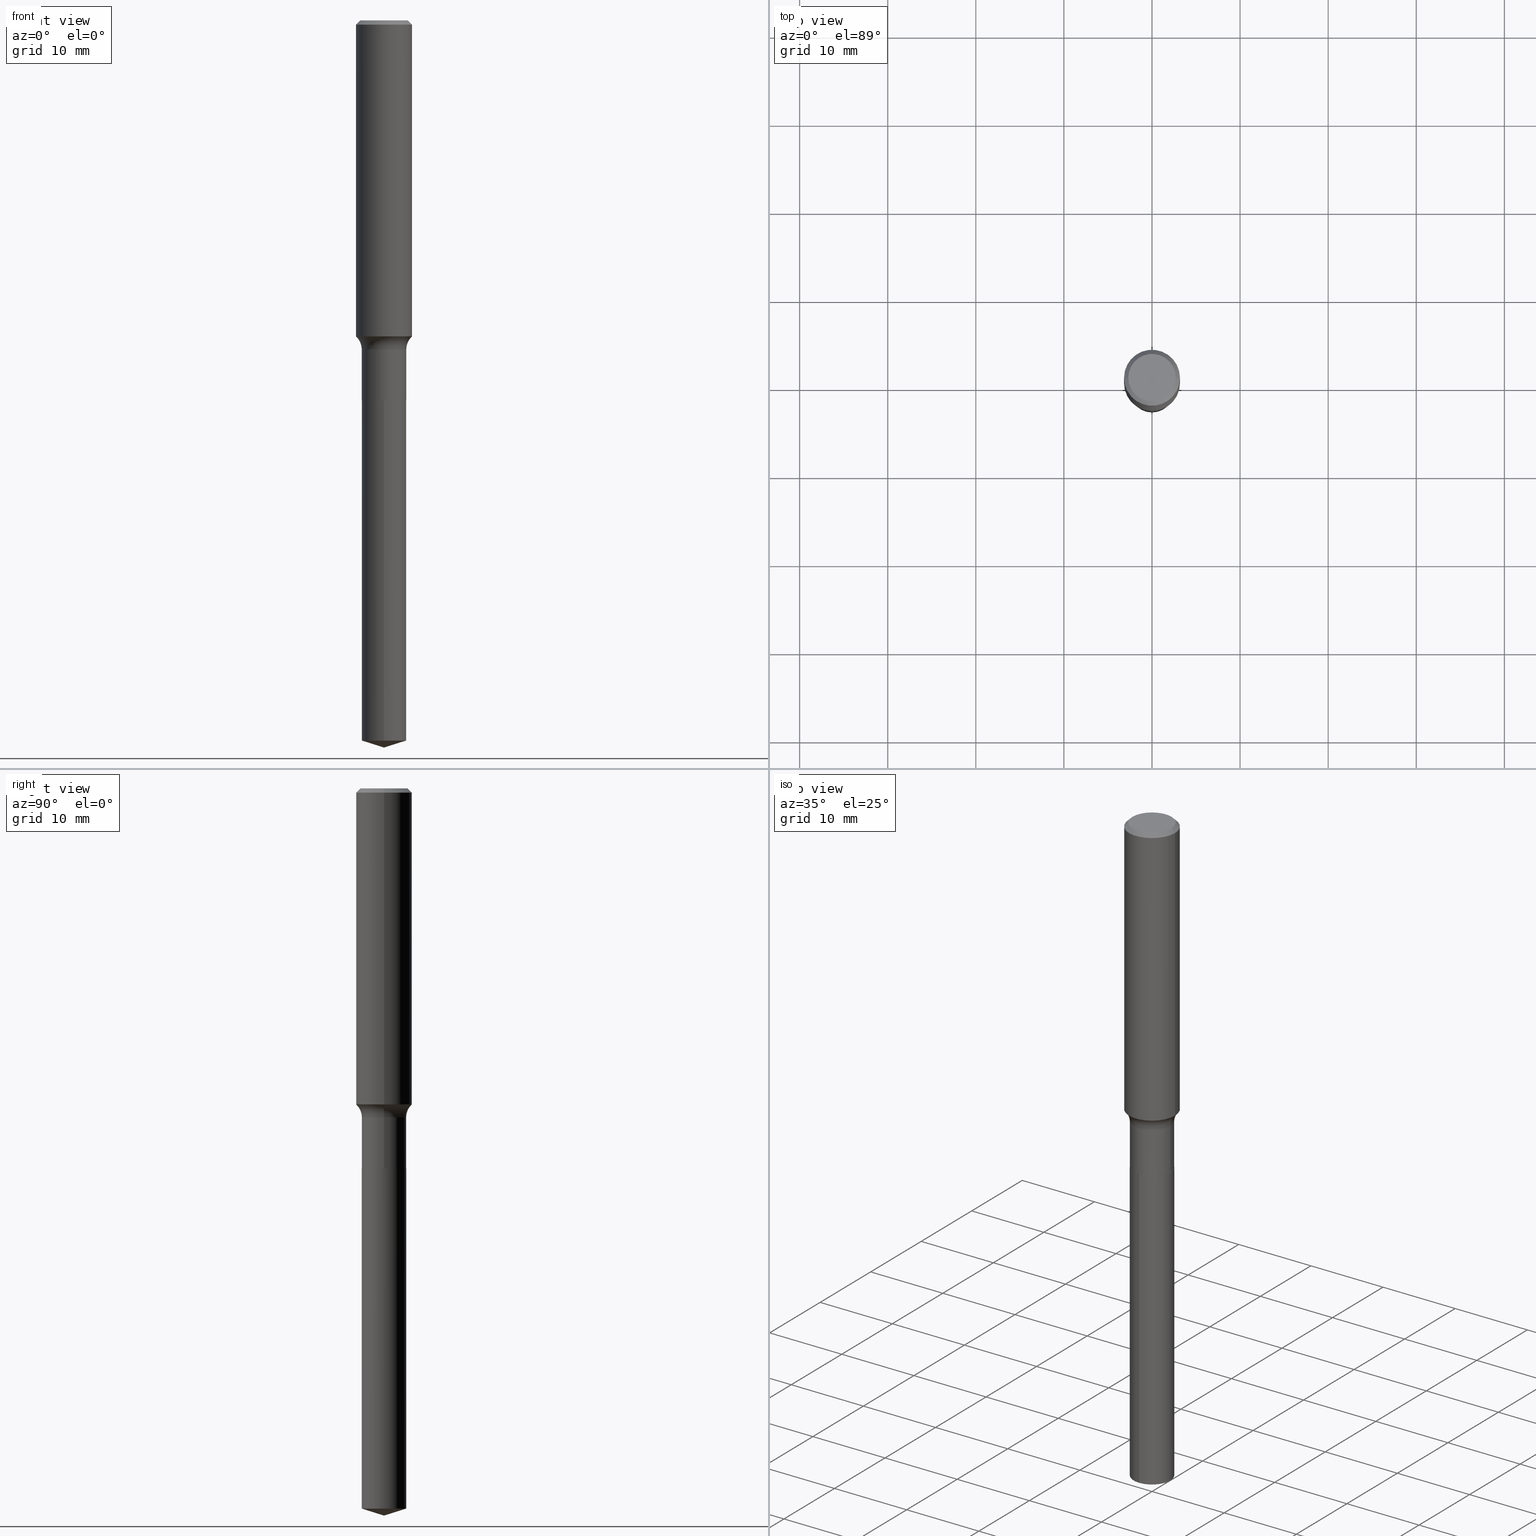
[diagram: canonical four-view strip — front | top / right | iso, engineering-drawing reading convention]
A machine part, canonical four-view strip (front | top / right | iso — engineering-drawing reading convention). The complete STEP part file that produces these views, byte-faithful:
ISO-10303-21;
HEADER;
FILE_DESCRIPTION (( 'STEP AP203' ),
    '1' );
FILE_NAME ('52333.STEP',
    '2024-04-19T13:43:29',
    ( '' ),
    ( '' ),
    'SwSTEP 2.0',
    'SolidWorks 2023',
    '' );
FILE_SCHEMA (( 'CONFIG_CONTROL_DESIGN' ));
ENDSEC;

DATA;
#1 = ORIENTED_EDGE ( 'NONE', *, *, #413, .T. ) ;
#2 = PERSON_AND_ORGANIZATION ( #422, #371 ) ;
#3 = CC_DESIGN_APPROVAL ( #241, ( #162 ) ) ;
#4 = EDGE_CURVE ( 'NONE', #147, #464, #203, .T. ) ;
#5 = CIRCLE ( 'NONE', #224, 0.09950000000000000511 ) ;
#6 = DIRECTION ( 'NONE',  ( -2.445468806185136597E-29, 3.491481338843145583E-15, 1.000000000000000000 ) ) ;
#7 = FACE_OUTER_BOUND ( 'NONE', #248, .T. ) ;
#8 = EDGE_CURVE ( 'NONE', #351, #342, #314, .T. ) ;
#9 = PRODUCT ( '52333', '52333', '', ( #295 ) ) ;
#10 = DIRECTION ( 'NONE',  ( -6.982962677686266711E-15, -1.000000000000000000, 3.491481338843145583E-15 ) ) ;
#11 = CARTESIAN_POINT ( 'NONE',  ( 0.1250000000000000000, -9.230275248247509846E-16, -0.01875000000000012768 ) ) ;
#12 = ORIENTED_EDGE ( 'NONE', *, *, #444, .F. ) ;
#13 = DIRECTION ( 'NONE',  ( -2.445480960601985091E-29, 3.491463933026432344E-15, 1.000000000000000000 ) ) ;
#14 = DIRECTION ( 'NONE',  ( -2.445480960601985091E-29, 3.491463933026432344E-15, 1.000000000000000000 ) ) ;
#15 = ORIENTED_EDGE ( 'NONE', *, *, #183, .F. ) ;
#16 = FACE_OUTER_BOUND ( 'NONE', #359, .T. ) ;
#17 =( LENGTH_UNIT ( ) NAMED_UNIT ( * ) SI_UNIT ( $, .METRE. ) );
#18 = DIRECTION ( 'NONE',  ( 1.000000000000000000, -6.982962677686268288E-15, 0.000000000000000000 ) ) ;
#19 = DIMENSIONAL_EXPONENTS ( 1.000000000000000000, 0.000000000000000000, 0.000000000000000000, 0.000000000000000000, 0.000000000000000000, 0.000000000000000000, 0.000000000000000000 ) ;
#20 = ORIENTED_EDGE ( 'NONE', *, *, #45, .T. ) ;
#21 = LINE ( 'NONE', #484, #388 ) ;
#22 = CARTESIAN_POINT ( 'NONE',  ( 0.000000000000000000, 0.000000000000000000, 0.000000000000000000 ) ) ;
#23 = VECTOR ( 'NONE', #50, 39.37007874015748143 ) ;
#24 = DIRECTION ( 'NONE',  ( -2.445468806185136597E-29, 3.491481338843145583E-15, 1.000000000000000000 ) ) ;
#25 = PRODUCT_RELATED_PRODUCT_CATEGORY ( 'detail', '', ( #9 ) ) ;
#26 = DIRECTION ( 'NONE',  ( -6.982962677686266711E-15, -1.000000000000000000, 5.491151746058819933E-15 ) ) ;
#27 = DIRECTION ( 'NONE',  ( -6.982962677686265922E-15, -1.000000000000000000, 3.500519750498801462E-15 ) ) ;
#28 = EDGE_LOOP ( 'NONE', ( #207, #483, #326 ) ) ;
#29 = DIRECTION ( 'NONE',  ( -2.438088387897960049E-29, 3.491481338843145188E-15, 1.000000000000000000 ) ) ;
#30 = DIRECTION ( 'NONE',  ( 1.000000000000000000, -6.982962677686264344E-15, 0.000000000000000000 ) ) ;
#31 = DIRECTION ( 'NONE',  ( -1.000000000000000000, 7.105427357601001859E-15, 0.000000000000000000 ) ) ;
#32 = COORDINATED_UNIVERSAL_TIME_OFFSET ( 5, 0, .BEHIND. ) ;
#33 = CARTESIAN_POINT ( 'NONE',  ( 3.595083691972769604E-29, -5.132826716233308319E-15, -1.470099999999999962 ) ) ;
#34 = EDGE_CURVE ( 'NONE', #382, #66, #475, .T. ) ;
#35 = ORIENTED_EDGE ( 'NONE', *, *, #78, .T. ) ;
#36 = CIRCLE ( 'NONE', #462, 0.1250000000000001665 ) ;
#37 = ORIENTED_EDGE ( 'NONE', *, *, #385, .F. ) ;
#38 = DIRECTION ( 'NONE',  ( -2.445480960601985091E-29, 3.491463933026432344E-15, 1.000000000000000000 ) ) ;
#39 = ORIENTED_EDGE ( 'NONE', *, *, #256, .F. ) ;
#40 = EDGE_CURVE ( 'NONE', #477, #464, #202, .T. ) ;
#41 = CYLINDRICAL_SURFACE ( 'NONE', #65, 0.09950000000000000511 ) ;
#42 = AXIS2_PLACEMENT_3D ( 'NONE', #163, #332, #55 ) ;
#43 = SECURITY_CLASSIFICATION ( '', '', #184 ) ;
#44 = CARTESIAN_POINT ( 'NONE',  ( 0.09900000000000000466, -6.623340099785444075E-15, -1.699000000000000066 ) ) ;
#45 = EDGE_CURVE ( 'NONE', #98, #464, #49, .T. ) ;
#46 = ORIENTED_EDGE ( 'NONE', *, *, #305, .F. ) ;
#47 = CONICAL_SURFACE ( 'NONE', #154, 0.09900000000000000466, 0.7853981633975507526 ) ;
#48 = LOCAL_TIME ( 9, 43, 29.00000000000000000, #460 ) ;
#49 = LINE ( 'NONE', #77, #308 ) ;
#50 = DIRECTION ( 'NONE',  ( -0.7071067811866199593, 7.493145998870616062E-15, 0.7071067811864750752 ) ) ;
#51 = ORIENTED_EDGE ( 'NONE', *, *, #56, .F. ) ;
#52 = DIRECTION ( 'NONE',  ( -2.445468806185136597E-29, 3.491481338843145583E-15, 1.000000000000000000 ) ) ;
#53 = AXIS2_PLACEMENT_3D ( 'NONE', #285, #24, #249 ) ;
#54 = VERTEX_POINT ( 'NONE', #44 ) ;
#55 = DIRECTION ( 'NONE',  ( 1.000000000000000000, -6.982962677686268288E-15, 0.000000000000000000 ) ) ;
#56 = EDGE_CURVE ( 'NONE', #351, #281, #353, .T. ) ;
#57 = ORIENTED_EDGE ( 'NONE', *, *, #333, .F. ) ;
#58 = CARTESIAN_POINT ( 'NONE',  ( -0.1250000000000001388, -4.043236422096399884E-15, -1.412413346430911654 ) ) ;
#59 = CALENDAR_DATE ( 2024, 19, 4 ) ;
#60 = FACE_OUTER_BOUND ( 'NONE', #330, .T. ) ;
#61 = EDGE_CURVE ( 'NONE', #87, #142, #329, .T. ) ;
#62 = VERTEX_POINT ( 'NONE', #58 ) ;
#63 = CYLINDRICAL_SURFACE ( 'NONE', #457, 0.09949999999999999123 ) ;
#64 = DIRECTION ( 'NONE',  ( 6.982962677686265922E-15, 1.000000000000000000, -3.491463933026432738E-15 ) ) ;
#65 = AXIS2_PLACEMENT_3D ( 'NONE', #454, #343, #349 ) ;
#66 = VERTEX_POINT ( 'NONE', #467 ) ;
#67 = CARTESIAN_POINT ( 'NONE',  ( 0.09900000000000000466, -6.623340099785444075E-15, -1.699000000000000066 ) ) ;
#68 = DIRECTION ( 'NONE',  ( 1.000000000000000000, -6.982962677686266711E-15, 4.875930095424100059E-29 ) ) ;
#69 = COORDINATED_UNIVERSAL_TIME_OFFSET ( 5, 0, .BEHIND. ) ;
#70 = ORIENTED_EDGE ( 'NONE', *, *, #34, .T. ) ;
#71 = AXIS2_PLACEMENT_3D ( 'NONE', #336, #138, #372 ) ;
#72 = PERSON_AND_ORGANIZATION ( #422, #371 ) ;
#73 = APPROVAL_STATUS ( 'not_yet_approved' ) ;
#74 = ADVANCED_FACE ( 'NONE', ( #217 ), #173, .T. ) ;
#75 = APPROVAL_ROLE ( '' ) ;
#76 = CARTESIAN_POINT ( 'NONE',  ( 7.069900220813783115E-16, 0.09949999999998877798, -3.218627770506540919 ) ) ;
#77 = CARTESIAN_POINT ( 'NONE',  ( 0.09949999999999999123, -6.948047864297834667E-16, 4.851795891916955189E-30 ) ) ;
#78 = EDGE_CURVE ( 'NONE', #477, #66, #21, .T. ) ;
#79 = LINE ( 'NONE', #67, #291 ) ;
#80 = VECTOR ( 'NONE', #244, 39.37007874015748143 ) ;
#81 = EDGE_CURVE ( 'NONE', #464, #147, #304, .T. ) ;
#82 = CARTESIAN_POINT ( 'NONE',  ( -0.09900000000000000466, -5.228589486292005187E-15, -1.699000000000000066 ) ) ;
#83 = ORIENTED_EDGE ( 'NONE', *, *, #94, .F. ) ;
#84 = ADVANCED_FACE ( 'NONE', ( #440 ), #425, .F. ) ;
#85 =( NAMED_UNIT ( * ) SI_UNIT ( $, .STERADIAN. ) SOLID_ANGLE_UNIT ( ) );
#86 = DIRECTION ( 'NONE',  ( -2.445468806185136597E-29, 3.491481338843145583E-15, 1.000000000000000000 ) ) ;
#87 = VERTEX_POINT ( 'NONE', #395 ) ;
#88 = CARTESIAN_POINT ( 'NONE',  ( 7.947813121956450705E-29, -1.134725778233590561E-14, -3.250000000000000000 ) ) ;
#89 = EDGE_CURVE ( 'NONE', #238, #171, #400, .T. ) ;
#90 = CONICAL_SURFACE ( 'NONE', #393, 0.09900000000000000466, 0.7853981633975507526 ) ;
#91 = ORIENTED_EDGE ( 'NONE', *, *, #40, .F. ) ;
#92 = DIRECTION ( 'NONE',  ( 2.438088387897960049E-29, -3.491481338843145188E-15, -1.000000000000000000 ) ) ;
#93 = PERSON_AND_ORGANIZATION ( #422, #371 ) ;
#94 = EDGE_CURVE ( 'NONE', #190, #351, #465, .T. ) ;
#95 = EDGE_LOOP ( 'NONE', ( #347, #216 ) ) ;
#96 = FACE_OUTER_BOUND ( 'NONE', #193, .T. ) ;
#97 = DIRECTION ( 'NONE',  ( -2.445468806185136597E-29, 3.491481338843145583E-15, 1.000000000000000000 ) ) ;
#98 = VERTEX_POINT ( 'NONE', #369 ) ;
#99 = COORDINATED_UNIVERSAL_TIME_OFFSET ( 5, 0, .BEHIND. ) ;
#100 = LINE ( 'NONE', #262, #368 ) ;
#101 = AXIS2_PLACEMENT_3D ( 'NONE', #318, #118, #421 ) ;
#102 = VECTOR ( 'NONE', #228, 39.37007874015748143 ) ;
#103 = CARTESIAN_POINT ( 'NONE',  ( 4.154851501708547396E-29, -5.932026794694504207E-15, -1.699000000000000066 ) ) ;
#104 = ORIENTED_EDGE ( 'NONE', *, *, #231, .T. ) ;
#105 = DIRECTION ( 'NONE',  ( 7.105427357601001859E-15, 1.000000000000000000, -3.491481338843145583E-15 ) ) ;
#106 = COORDINATED_UNIVERSAL_TIME_OFFSET ( 5, 0, .BEHIND. ) ;
#107 = CARTESIAN_POINT ( 'NONE',  ( 3.454012780136355441E-29, -4.931414841796526694E-15, -1.412413346430911654 ) ) ;
#108 = DIRECTION ( 'NONE',  ( 1.000000000000000000, -6.982962677686265922E-15, 4.876176775795935793E-29 ) ) ;
#109 = DATE_AND_TIME ( #302, #225 ) ;
#110 = AXIS2_PLACEMENT_3D ( 'NONE', #273, #381, #201 ) ;
#111 = CIRCLE ( 'NONE', #121, 0.1250000000000000000 ) ;
#112 = APPROVAL_PERSON_ORGANIZATION ( #327, #241, #289 ) ;
#113 = CC_DESIGN_DATE_AND_TIME_ASSIGNMENT ( #188, #151, ( #43 ) ) ;
#114 = ORIENTED_EDGE ( 'NONE', *, *, #123, .T. ) ;
#115 = FACE_OUTER_BOUND ( 'NONE', #451, .T. ) ;
#116 = APPROVAL_DATE_TIME ( #383, #311 ) ;
#117 = PRODUCT_DEFINITION_SHAPE ( 'NONE', 'NONE',  #162 ) ;
#118 = DIRECTION ( 'NONE',  ( -2.445480960601985091E-29, 3.491463933026432344E-15, 1.000000000000000000 ) ) ;
#119 = CARTESIAN_POINT ( 'NONE',  ( -8.833098550485388739E-28, 1.261119226068520643E-13, 36.12007874015748143 ) ) ;
#120 = ADVANCED_FACE ( 'NONE', ( #135 ), #391, .T. ) ;
#121 = AXIS2_PLACEMENT_3D ( 'NONE', #300, #168, #303 ) ;
#122 = ORIENTED_EDGE ( 'NONE', *, *, #8, .F. ) ;
#123 = EDGE_CURVE ( 'NONE', #171, #98, #377, .T. ) ;
#124 = CARTESIAN_POINT ( 'NONE',  ( 7.069900220813411364E-16, 0.09949999999999407929, -1.699000000000000288 ) ) ;
#125 = CONICAL_SURFACE ( 'NONE', #358, 124.8659371009116086, 1.265363707695883688 ) ;
#126 = APPLICATION_CONTEXT ( 'configuration controlled 3d designs of mechanical parts and assemblies' ) ;
#127 = EDGE_CURVE ( 'NONE', #238, #54, #165, .T. ) ;
#128 = ORIENTED_EDGE ( 'NONE', *, *, #221, .T. ) ;
#129 = CARTESIAN_POINT ( 'NONE',  ( 4.585254011597162998E-31, -6.546527510330942834E-17, -0.01875000000000012768 ) ) ;
#130 = DIRECTION ( 'NONE',  ( 0.7071067811866199593, -2.468850131083015945E-15, 0.7071067811864750752 ) ) ;
#131 = ORIENTED_EDGE ( 'NONE', *, *, #256, .T. ) ;
#132 = CARTESIAN_POINT ( 'NONE',  ( 4.154851501708547396E-29, -5.932026794694504207E-15, -1.699000000000000066 ) ) ;
#133 = DIRECTION ( 'NONE',  ( -2.445468806185136597E-29, 3.491481338843145583E-15, 1.000000000000000000 ) ) ;
#134 = ORIENTED_EDGE ( 'NONE', *, *, #78, .F. ) ;
#135 = FACE_OUTER_BOUND ( 'NONE', #180, .T. ) ;
#136 = EDGE_CURVE ( 'NONE', #87, #66, #140, .T. ) ;
#137 = APPROVAL_STATUS ( 'not_yet_approved' ) ;
#138 = DIRECTION ( 'NONE',  ( -2.445468806185136597E-29, 3.491481338843145583E-15, 1.000000000000000000 ) ) ;
#139 = ORIENTED_EDGE ( 'NONE', *, *, #444, .T. ) ;
#140 = LINE ( 'NONE', #11, #145 ) ;
#141 = CARTESIAN_POINT ( 'NONE',  ( 0.000000000000000000, 0.000000000000000000, 0.000000000000000000 ) ) ;
#142 = VERTEX_POINT ( 'NONE', #282 ) ;
#143 = DIRECTION ( 'NONE',  ( -1.000000000000000000, 6.982962677686265922E-15, -4.876176775795935793E-29 ) ) ;
#144 = DIRECTION ( 'NONE',  ( -6.659769872151614734E-15, -0.9537169507482242681, 0.3007057995042813903 ) ) ;
#145 = VECTOR ( 'NONE', #335, 39.37007874015748143 ) ;
#146 = AXIS2_PLACEMENT_3D ( 'NONE', #325, #283, #64 ) ;
#147 = VERTEX_POINT ( 'NONE', #430 ) ;
#148 = ADVANCED_BREP_SHAPE_REPRESENTATION ( '52333', ( #429, #438, #420 ), #166 ) ;
#149 = CARTESIAN_POINT ( 'NONE',  ( -0.1250000000000000000, -1.610261638749791898E-15, -0.01875000000000012768 ) ) ;
#150 = ORIENTED_EDGE ( 'NONE', *, *, #491, .T. ) ;
#151 = DATE_TIME_ROLE ( 'classification_date' ) ;
#152 = ORIENTED_EDGE ( 'NONE', *, *, #81, .F. ) ;
#153 = CC_DESIGN_DATE_AND_TIME_ASSIGNMENT ( #192, #236, ( #162 ) ) ;
#154 = AXIS2_PLACEMENT_3D ( 'NONE', #402, #219, #30 ) ;
#155 = DIRECTION ( 'NONE',  ( -2.445480960601985091E-29, 3.491463933026432344E-15, 1.000000000000000000 ) ) ;
#156 = PERSON_AND_ORGANIZATION ( #422, #371 ) ;
#157 = CARTESIAN_POINT ( 'NONE',  ( 3.454012780136355441E-29, -4.931414841796526694E-15, -1.412413346430911654 ) ) ;
#158 = DIRECTION ( 'NONE',  ( 1.000000000000000000, -6.982962677686269077E-15, 0.000000000000000000 ) ) ;
#159 = VECTOR ( 'NONE', #172, 39.37007874015748143 ) ;
#160 = CARTESIAN_POINT ( 'NONE',  ( -8.833098550485388739E-28, 1.261119226068520643E-13, 36.12007874015748143 ) ) ;
#161 = ORIENTED_EDGE ( 'NONE', *, *, #123, .F. ) ;
#162 = PRODUCT_DEFINITION ( 'UNKNOWN', '', #271, #200 ) ;
#163 = CARTESIAN_POINT ( 'NONE',  ( 4.153628767305455155E-29, -5.930281054025084281E-15, -1.698500000000000121 ) ) ;
#164 = LENGTH_MEASURE_WITH_UNIT ( LENGTH_MEASURE( 0.02539999999999999897 ), #17 );
#165 = CIRCLE ( 'NONE', #53, 0.09900000000000000466 ) ;
#166 =( GEOMETRIC_REPRESENTATION_CONTEXT ( 3 ) GLOBAL_UNCERTAINTY_ASSIGNED_CONTEXT ( ( #417 ) ) GLOBAL_UNIT_ASSIGNED_CONTEXT ( ( #405, #428, #85 ) ) REPRESENTATION_CONTEXT ( 'NONE', 'WORKASPACE' ) );
#167 = EDGE_LOOP ( 'NONE', ( #334, #426, #139, #70 ) ) ;
#168 = DIRECTION ( 'NONE',  ( -2.445468806185136597E-29, 3.491481338843145583E-15, 1.000000000000000000 ) ) ;
#169 = PERSON_AND_ORGANIZATION_ROLE ( 'design_owner' ) ;
#170 = CARTESIAN_POINT ( 'NONE',  ( -1.591006383764330940E-46, 2.271535455632768948E-32, 6.505936120470318766E-18 ) ) ;
#171 = VERTEX_POINT ( 'NONE', #294 ) ;
#172 = DIRECTION ( 'NONE',  ( 6.776566513254239994E-15, 0.9537169507482263775, 0.3007057995042747844 ) ) ;
#173 = CONICAL_SURFACE ( 'NONE', #408, 0.1250000000000000000, 0.7853981633974447263 ) ;
#174 = DIRECTION ( 'NONE',  ( -2.445468806185136597E-29, 3.491481338843145583E-15, 1.000000000000000000 ) ) ;
#175 = LOCAL_TIME ( 9, 43, 29.00000000000000000, #99 ) ;
#176 = ORIENTED_EDGE ( 'NONE', *, *, #385, .T. ) ;
#177 = DIRECTION ( 'NONE',  ( 2.445468806185136597E-29, -3.491481338843145583E-15, -1.000000000000000000 ) ) ;
#178 = ADVANCED_FACE ( 'NONE', ( #427 ), #63, .T. ) ;
#179 = CARTESIAN_POINT ( 'NONE',  ( -0.09900000000000000466, -5.225940259117894775E-15, -1.699000000000000066 ) ) ;
#180 = EDGE_LOOP ( 'NONE', ( #51, #434, #104, #298 ) ) ;
#181 = PERSON_AND_ORGANIZATION_ROLE ( 'creator' ) ;
#182 = FACE_OUTER_BOUND ( 'NONE', #187, .T. ) ;
#183 = EDGE_CURVE ( 'NONE', #443, #281, #315, .T. ) ;
#184 = SECURITY_CLASSIFICATION_LEVEL ( 'unclassified' ) ;
#185 = CIRCLE ( 'NONE', #411, 0.09950000000000000511 ) ;
#186 = VECTOR ( 'NONE', #354, 39.37007874015748143 ) ;
#187 = EDGE_LOOP ( 'NONE', ( #46, #176, #35, #237 ) ) ;
#188 = DATE_AND_TIME ( #376, #322 ) ;
#189 = DIRECTION ( 'NONE',  ( 1.000000000000000000, -6.982962677686266711E-15, 4.876176775795935793E-29 ) ) ;
#190 = VERTEX_POINT ( 'NONE', #88 ) ;
#191 = ADVANCED_FACE ( 'NONE', ( #16 ), #288, .F. ) ;
#192 = DATE_AND_TIME ( #487, #196 ) ;
#193 = EDGE_LOOP ( 'NONE', ( #37, #260, #373, #91 ) ) ;
#194 = CIRCLE ( 'NONE', #269, 0.1062499999999999972 ) ;
#195 = DIRECTION ( 'NONE',  ( 1.000000000000000000, -6.982962677686261977E-15, 0.000000000000000000 ) ) ;
#196 = LOCAL_TIME ( 9, 43, 29.00000000000000000, #69 ) ;
#197 = CARTESIAN_POINT ( 'NONE',  ( -6.948047864297420515E-16, -0.09950000000000593092, -1.698999999999999844 ) ) ;
#198 = FACE_OUTER_BOUND ( 'NONE', #28, .T. ) ;
#199 = LINE ( 'NONE', #276, #186 ) ;
#200 = DESIGN_CONTEXT ( 'detailed design', #470, 'design' ) ;
#201 = DIRECTION ( 'NONE',  ( 1.000000000000000000, -6.982962677686266711E-15, 4.875930095424100059E-29 ) ) ;
#202 = CIRCLE ( 'NONE', #474, 0.07799999999999995826 ) ;
#203 = CIRCLE ( 'NONE', #488, 0.09949999999999997735 ) ;
#204 = CC_DESIGN_APPROVAL ( #379, ( #271 ) ) ;
#205 = SHAPE_DEFINITION_REPRESENTATION ( #117, #148 ) ;
#206 = CC_DESIGN_PERSON_AND_ORGANIZATION_ASSIGNMENT ( #93, #254, ( #162 ) ) ;
#207 = ORIENTED_EDGE ( 'NONE', *, *, #259, .F. ) ;
#208 = DIRECTION ( 'NONE',  ( -2.445468806185136597E-29, 3.491481338843145583E-15, 1.000000000000000000 ) ) ;
#209 = DIRECTION ( 'NONE',  ( 1.000000000000000000, -6.982962677686269077E-15, 4.883557194083114022E-29 ) ) ;
#210 = AXIS2_PLACEMENT_3D ( 'NONE', #22, #174, #328 ) ;
#211 = APPROVAL_PERSON_ORGANIZATION ( #72, #311, #456 ) ;
#212 = EDGE_CURVE ( 'NONE', #62, #147, #389, .T. ) ;
#213 = EDGE_LOOP ( 'NONE', ( #365, #375, #131, #12 ) ) ;
#214 = DIRECTION ( 'NONE',  ( 1.000000000000000000, -6.982962677686261977E-15, 0.000000000000000000 ) ) ;
#215 = CARTESIAN_POINT ( 'NONE',  ( 0.1250000000000001388, -5.804285176507311611E-15, -1.412413346430911654 ) ) ;
#216 = ORIENTED_EDGE ( 'NONE', *, *, #61, .T. ) ;
#217 = FACE_OUTER_BOUND ( 'NONE', #213, .T. ) ;
#218 = DIRECTION ( 'NONE',  ( 0.000000000000000000, 0.000000000000000000, 1.000000000000000000 ) ) ;
#219 = DIRECTION ( 'NONE',  ( -2.445468806185136597E-29, 3.491481338843145583E-15, 1.000000000000000000 ) ) ;
#220 = EDGE_LOOP ( 'NONE', ( #150, #234, #15, #439 ) ) ;
#221 = EDGE_CURVE ( 'NONE', #171, #147, #232, .T. ) ;
#222 = DIRECTION ( 'NONE',  ( -2.445468806185136877E-29, 3.491481338843145188E-15, 1.000000000000000000 ) ) ;
#223 = PLANE ( 'NONE',  #146 ) ;
#224 = AXIS2_PLACEMENT_3D ( 'NONE', #103, #38, #415 ) ;
#225 = LOCAL_TIME ( 9, 43, 29.00000000000000000, #32 ) ;
#226 = ORIENTED_EDGE ( 'NONE', *, *, #449, .T. ) ;
#227 = ADVANCED_FACE ( 'NONE', ( #7 ), #331, .T. ) ;
#228 = DIRECTION ( 'NONE',  ( -2.445468806185136877E-29, 3.491481338843145188E-15, 1.000000000000000000 ) ) ;
#229 = ORIENTED_EDGE ( 'NONE', *, *, #127, .T. ) ;
#230 = DIRECTION ( 'NONE',  ( 1.000000000000000000, -6.982962677686269077E-15, 0.000000000000000000 ) ) ;
#231 = EDGE_CURVE ( 'NONE', #342, #443, #319, .T. ) ;
#232 = LINE ( 'NONE', #378, #80 ) ;
#233 = ADVANCED_FACE ( 'NONE', ( #198 ), #125, .T. ) ;
#234 = ORIENTED_EDGE ( 'NONE', *, *, #56, .T. ) ;
#235 = APPROVAL_STATUS ( 'not_yet_approved' ) ;
#236 = DATE_TIME_ROLE ( 'creation_date' ) ;
#237 = ORIENTED_EDGE ( 'NONE', *, *, #34, .F. ) ;
#238 = VERTEX_POINT ( 'NONE', #179 ) ;
#239 = CARTESIAN_POINT ( 'NONE',  ( -6.948047864297420515E-16, -0.09950000000000593092, -1.698999999999999844 ) ) ;
#240 = DIRECTION ( 'NONE',  ( -2.445468806185136877E-29, 3.491481338843145188E-15, 1.000000000000000000 ) ) ;
#241 = APPROVAL ( #137, 'UNSPECIFIED' ) ;
#242 = CARTESIAN_POINT ( 'NONE',  ( 4.585254011597162998E-31, -6.546527510330942834E-17, -0.01875000000000012768 ) ) ;
#243 = AXIS2_PLACEMENT_3D ( 'NONE', #471, #208, #214 ) ;
#244 = DIRECTION ( 'NONE',  ( -2.445468806185136877E-29, 3.491481338843145188E-15, 1.000000000000000000 ) ) ;
#245 = CC_DESIGN_SECURITY_CLASSIFICATION ( #43, ( #271 ) ) ;
#246 = DIRECTION ( 'NONE',  ( -2.445480960601985371E-29, 3.491463933026432738E-15, 1.000000000000000000 ) ) ;
#247 = CARTESIAN_POINT ( 'NONE',  ( 7.947813484114912367E-29, -1.134725778233590719E-14, -3.250000000000000000 ) ) ;
#248 = EDGE_LOOP ( 'NONE', ( #83, #287, #122 ) ) ;
#249 = DIRECTION ( 'NONE',  ( 1.000000000000000000, -6.982962677686264344E-15, 0.000000000000000000 ) ) ;
#250 = CIRCLE ( 'NONE', #290, 0.1250000000000001665 ) ;
#251 = CC_DESIGN_APPROVAL ( #311, ( #43 ) ) ;
#252 = DIRECTION ( 'NONE',  ( 1.000000000000000000, -6.982962677686264344E-15, 0.000000000000000000 ) ) ;
#253 = CARTESIAN_POINT ( 'NONE',  ( 4.154851501708547396E-29, -5.932026794694504207E-15, -1.699000000000000066 ) ) ;
#254 = PERSON_AND_ORGANIZATION_ROLE ( 'creator' ) ;
#255 = CYLINDRICAL_SURFACE ( 'NONE', #210, 0.09949999999999999123 ) ;
#256 = EDGE_CURVE ( 'NONE', #66, #382, #111, .T. ) ;
#257 = ORIENTED_EDGE ( 'NONE', *, *, #127, .F. ) ;
#258 = DIRECTION ( 'NONE',  ( -1.000000000000000000, 6.982962677686266711E-15, 0.000000000000000000 ) ) ;
#259 = EDGE_CURVE ( 'NONE', #190, #342, #100, .T. ) ;
#260 = ORIENTED_EDGE ( 'NONE', *, *, #212, .T. ) ;
#261 = DATE_AND_TIME ( #59, #175 ) ;
#262 = CARTESIAN_POINT ( 'NONE',  ( 7.947771821248001255E-29, -1.134731692730109752E-14, -3.250000000000000000 ) ) ;
#263 = AXIS2_PLACEMENT_3D ( 'NONE', #357, #92, #143 ) ;
#264 = AXIS2_PLACEMENT_3D ( 'NONE', #299, #370, #209 ) ;
#265 = ORIENTED_EDGE ( 'NONE', *, *, #4, .F. ) ;
#266 = DIRECTION ( 'NONE',  ( -2.445468806185136597E-29, 3.491481338843145583E-15, 1.000000000000000000 ) ) ;
#267 = FACE_OUTER_BOUND ( 'NONE', #220, .T. ) ;
#268 = VECTOR ( 'NONE', #246, 39.37007874015748143 ) ;
#269 = AXIS2_PLACEMENT_3D ( 'NONE', #170, #86, #68 ) ;
#270 = AXIS2_PLACEMENT_3D ( 'NONE', #160, #155, #424 ) ;
#271 = PRODUCT_DEFINITION_FORMATION_WITH_SPECIFIED_SOURCE ( 'ANY', '', #9, .NOT_KNOWN. ) ;
#272 = CARTESIAN_POINT ( 'NONE',  ( -0.1774999999999999634, -3.871613360259130552E-15, -1.470099999999999962 ) ) ;
#273 = CARTESIAN_POINT ( 'NONE',  ( -1.591006383764330940E-46, 2.271535455632768948E-32, 6.505936120470318766E-18 ) ) ;
#274 = EDGE_CURVE ( 'NONE', #142, #87, #194, .T. ) ;
#275 = ADVANCED_FACE ( 'NONE', ( #338 ), #90, .T. ) ;
#276 = CARTESIAN_POINT ( 'NONE',  ( -0.1250000000000000000, 8.074050596074738982E-16, -0.01875000000000012768 ) ) ;
#277 = ADVANCED_FACE ( 'NONE', ( #60 ), #255, .T. ) ;
#278 = CARTESIAN_POINT ( 'NONE',  ( 0.1774999999999999634, -6.372302591522620029E-15, -1.470099999999999962 ) ) ;
#279 = CIRCLE ( 'NONE', #350, 0.09900000000000000466 ) ;
#280 = AXIS2_PLACEMENT_3D ( 'NONE', #367, #396, #258 ) ;
#281 = VERTEX_POINT ( 'NONE', #286 ) ;
#282 = CARTESIAN_POINT ( 'NONE',  ( -0.1062499999999999972, 7.746724220558198188E-16, 6.505936120465015526E-18 ) ) ;
#283 = DIRECTION ( 'NONE',  ( 2.445480960601984250E-29, -3.491463933026432738E-15, -1.000000000000000000 ) ) ;
#284 = ORIENTED_EDGE ( 'NONE', *, *, #305, .T. ) ;
#285 = CARTESIAN_POINT ( 'NONE',  ( 4.154851501708547396E-29, -5.932026794694504207E-15, -1.699000000000000066 ) ) ;
#286 = CARTESIAN_POINT ( 'NONE',  ( 7.069900220813788045E-16, 0.09949999999999409317, -1.699000000000000288 ) ) ;
#287 = ORIENTED_EDGE ( 'NONE', *, *, #259, .T. ) ;
#288 = PLANE ( 'NONE',  #341 ) ;
#289 = APPROVAL_ROLE ( '' ) ;
#290 = AXIS2_PLACEMENT_3D ( 'NONE', #157, #455, #158 ) ;
#291 = VECTOR ( 'NONE', #130, 39.37007874015748143 ) ;
#292 = CARTESIAN_POINT ( 'NONE',  ( -6.948047864297048764E-16, -0.09950000000001124612, -3.218627770506540031 ) ) ;
#293 = ORIENTED_EDGE ( 'NONE', *, *, #89, .T. ) ;
#294 = CARTESIAN_POINT ( 'NONE',  ( -0.09950000000000000511, -4.824563863047897171E-15, -1.698500000000000121 ) ) ;
#295 = MECHANICAL_CONTEXT ( 'NONE', #126, 'mechanical' ) ;
#296 = CARTESIAN_POINT ( 'NONE',  ( 4.153628767305455155E-29, -5.930281054025084281E-15, -1.698500000000000121 ) ) ;
#297 = CC_DESIGN_PERSON_AND_ORGANIZATION_ASSIGNMENT ( #340, #490, ( #43 ) ) ;
#298 = ORIENTED_EDGE ( 'NONE', *, *, #364, .F. ) ;
#299 = CARTESIAN_POINT ( 'NONE',  ( 3.595083691972769604E-29, -5.132826716233308319E-15, -1.470099999999999962 ) ) ;
#300 = CARTESIAN_POINT ( 'NONE',  ( 4.585254011597162998E-31, -6.546527510330942834E-17, -0.01875000000000012768 ) ) ;
#301 = ORIENTED_EDGE ( 'NONE', *, *, #333, .T. ) ;
#302 = CALENDAR_DATE ( 2024, 19, 4 ) ;
#303 = DIRECTION ( 'NONE',  ( 1.000000000000000000, -6.982962677686266711E-15, 0.000000000000000000 ) ) ;
#304 = CIRCLE ( 'NONE', #243, 0.09949999999999997735 ) ;
#305 = EDGE_CURVE ( 'NONE', #62, #382, #363, .T. ) ;
#306 = PERSON_AND_ORGANIZATION ( #422, #371 ) ;
#307 = EDGE_LOOP ( 'NONE', ( #418, #323 ) ) ;
#308 = VECTOR ( 'NONE', #240, 39.37007874015748143 ) ;
#309 = AXIS2_PLACEMENT_3D ( 'NONE', #272, #105, #31 ) ;
#310 = ORIENTED_EDGE ( 'NONE', *, *, #356, .T. ) ;
#311 = APPROVAL ( #235, 'UNSPECIFIED' ) ;
#312 = DIRECTION ( 'NONE',  ( -2.445468806185136597E-29, 3.491481338843145583E-15, 1.000000000000000000 ) ) ;
#313 = DIRECTION ( 'NONE',  ( 1.000000000000000000, -6.982962677686261977E-15, 0.000000000000000000 ) ) ;
#314 = CIRCLE ( 'NONE', #101, 0.09950000000000000511 ) ;
#315 = CIRCLE ( 'NONE', #476, 0.09950000000000000511 ) ;
#316 = TOROIDAL_SURFACE ( 'NONE', #447, 0.1774999999999999634, 0.07799999999999994438 ) ;
#317 = ADVANCED_FACE ( 'NONE', ( #473 ), #406, .T. ) ;
#318 = CARTESIAN_POINT ( 'NONE',  ( 7.871072281684335663E-29, -1.123775234704346175E-14, -3.218627770506540475 ) ) ;
#319 = LINE ( 'NONE', #239, #489 ) ;
#320 = CARTESIAN_POINT ( 'NONE',  ( 3.595083691972769604E-29, -5.132826716233308319E-15, -1.470099999999999962 ) ) ;
#321 = CLOSED_SHELL ( 'NONE', ( #398, #233, #227, #120, #481 ) ) ;
#322 = LOCAL_TIME ( 9, 43, 29.00000000000000000, #106 ) ;
#323 = ORIENTED_EDGE ( 'NONE', *, *, #364, .T. ) ;
#324 = DIRECTION ( 'NONE',  ( -6.982962677686266711E-15, -1.000000000000000000, 2.745575873029409967E-15 ) ) ;
#325 = CARTESIAN_POINT ( 'NONE',  ( 4.154851501708547396E-29, -5.932026794694504207E-15, -1.699000000000000066 ) ) ;
#326 = ORIENTED_EDGE ( 'NONE', *, *, #491, .F. ) ;
#327 = PERSON_AND_ORGANIZATION ( #422, #371 ) ;
#328 = DIRECTION ( 'NONE',  ( 1.000000000000000000, -6.982962677686266711E-15, 4.876176775795935232E-29 ) ) ;
#329 = CIRCLE ( 'NONE', #110, 0.1062499999999999972 ) ;
#330 = EDGE_LOOP ( 'NONE', ( #414, #114, #20, #265 ) ) ;
#331 = CONICAL_SURFACE ( 'NONE', #270, 124.8659371009116086, 1.265363707695883688 ) ;
#332 = DIRECTION ( 'NONE',  ( -2.445468806185136597E-29, 3.491481338843145583E-15, 1.000000000000000000 ) ) ;
#333 = EDGE_CURVE ( 'NONE', #98, #171, #185, .T. ) ;
#334 = ORIENTED_EDGE ( 'NONE', *, *, #136, .F. ) ;
#335 = DIRECTION ( 'NONE',  ( 0.7071067811865450192, -7.319954787623246579E-15, -0.7071067811865500152 ) ) ;
#336 = CARTESIAN_POINT ( 'NONE',  ( 0.000000000000000000, 0.000000000000000000, 0.000000000000000000 ) ) ;
#337 = EDGE_LOOP ( 'NONE', ( #399, #229, #226, #161 ) ) ;
#338 = FACE_OUTER_BOUND ( 'NONE', #410, .T. ) ;
#339 = EDGE_LOOP ( 'NONE', ( #310, #284, #39, #134 ) ) ;
#340 = PERSON_AND_ORGANIZATION ( #422, #371 ) ;
#341 = AXIS2_PLACEMENT_3D ( 'NONE', #435, #29, #108 ) ;
#342 = VERTEX_POINT ( 'NONE', #292 ) ;
#343 = DIRECTION ( 'NONE',  ( -2.445480960601985091E-29, 3.491463933026432344E-15, 1.000000000000000000 ) ) ;
#344 = ORIENTED_EDGE ( 'NONE', *, *, #81, .T. ) ;
#345 = ADVANCED_FACE ( 'NONE', ( #437 ), #47, .T. ) ;
#346 = DIRECTION ( 'NONE',  ( -2.445468806185136597E-29, 3.491481338843145583E-15, 1.000000000000000000 ) ) ;
#347 = ORIENTED_EDGE ( 'NONE', *, *, #274, .T. ) ;
#348 = ADVANCED_FACE ( 'NONE', ( #182 ), #482, .T. ) ;
#349 = DIRECTION ( 'NONE',  ( -6.982962677686266711E-15, -1.000000000000000000, 2.745575873029409967E-15 ) ) ;
#350 = AXIS2_PLACEMENT_3D ( 'NONE', #374, #492, #416 ) ;
#351 = VERTEX_POINT ( 'NONE', #76 ) ;
#352 = DIRECTION ( 'NONE',  ( -2.445480960601985371E-29, 3.491463933026432738E-15, 1.000000000000000000 ) ) ;
#353 = LINE ( 'NONE', #124, #268 ) ;
#354 = DIRECTION ( 'NONE',  ( -0.7071067811865450192, 2.468850131082230634E-15, -0.7071067811865500152 ) ) ;
#355 = CLOSED_SHELL ( 'NONE', ( #275, #74, #317, #450, #178, #277, #431, #348, #459, #84, #191, #345 ) ) ;
#356 = EDGE_CURVE ( 'NONE', #477, #62, #250, .T. ) ;
#357 = CARTESIAN_POINT ( 'NONE',  ( -7.955031918821654702E-47, 1.135767727816384474E-32, 3.252968060235159383E-18 ) ) ;
#358 = AXIS2_PLACEMENT_3D ( 'NONE', #119, #409, #27 ) ;
#359 = EDGE_LOOP ( 'NONE', ( #445, #257 ) ) ;
#360 = DIRECTION ( 'NONE',  ( 1.000000000000000000, -6.982962677686266711E-15, 4.876176775795935232E-29 ) ) ;
#361 = FACE_OUTER_BOUND ( 'NONE', #167, .T. ) ;
#362 = ORIENTED_EDGE ( 'NONE', *, *, #45, .F. ) ;
#363 = LINE ( 'NONE', #433, #102 ) ;
#364 = EDGE_CURVE ( 'NONE', #281, #443, #5, .T. ) ;
#365 = ORIENTED_EDGE ( 'NONE', *, *, #61, .F. ) ;
#366 = DIRECTION ( 'NONE',  ( -1.000000000000000000, 6.982962677686266711E-15, 0.000000000000000000 ) ) ;
#367 = CARTESIAN_POINT ( 'NONE',  ( 4.585254011597162998E-31, -6.546527510330942834E-17, -0.01875000000000012768 ) ) ;
#368 = VECTOR ( 'NONE', #144, 39.37007874015748854 ) ;
#369 = CARTESIAN_POINT ( 'NONE',  ( 0.09950000000000000511, -6.625085840454867945E-15, -1.698500000000000121 ) ) ;
#370 = DIRECTION ( 'NONE',  ( -2.445468806185136597E-29, 3.491481338843145583E-15, 1.000000000000000000 ) ) ;
#371 = ORGANIZATION ( 'UNSPECIFIED', 'UNSPECIFIED', '' ) ;
#372 = DIRECTION ( 'NONE',  ( 1.000000000000000000, -6.982962677686266711E-15, 4.876176775795935793E-29 ) ) ;
#373 = ORIENTED_EDGE ( 'NONE', *, *, #4, .T. ) ;
#374 = CARTESIAN_POINT ( 'NONE',  ( 4.154851501708547396E-29, -5.932026794694504207E-15, -1.699000000000000066 ) ) ;
#375 = ORIENTED_EDGE ( 'NONE', *, *, #136, .T. ) ;
#376 = CALENDAR_DATE ( 2024, 19, 4 ) ;
#377 = CIRCLE ( 'NONE', #42, 0.09950000000000000511 ) ;
#378 = CARTESIAN_POINT ( 'NONE',  ( -0.09949999999999999123, 7.069900220812996226E-16, -4.894340414803631031E-30 ) ) ;
#379 = APPROVAL ( #73, 'UNSPECIFIED' ) ;
#380 = APPROVAL_DATE_TIME ( #109, #379 ) ;
#381 = DIRECTION ( 'NONE',  ( -2.445468806185136597E-29, 3.491481338843145583E-15, 1.000000000000000000 ) ) ;
#382 = VERTEX_POINT ( 'NONE', #149 ) ;
#383 = DATE_AND_TIME ( #423, #48 ) ;
#384 = DIRECTION ( 'NONE',  ( 1.000000000000000000, -6.982962677686266711E-15, 0.000000000000000000 ) ) ;
#385 = EDGE_CURVE ( 'NONE', #62, #477, #36, .T. ) ;
#386 = ORIENTED_EDGE ( 'NONE', *, *, #40, .T. ) ;
#387 = DIRECTION ( 'NONE',  ( 1.000000000000000000, -6.982962677686269077E-15, 4.883557194083114022E-29 ) ) ;
#388 = VECTOR ( 'NONE', #222, 39.37007874015748143 ) ;
#389 = CIRCLE ( 'NONE', #309, 0.07799999999999995826 ) ;
#390 = CC_DESIGN_PERSON_AND_ORGANIZATION_ASSIGNMENT ( #306, #446, ( #271 ) ) ;
#391 = CYLINDRICAL_SURFACE ( 'NONE', #419, 0.09950000000000000511 ) ;
#392 = CARTESIAN_POINT ( 'NONE',  ( 0.000000000000000000, 0.000000000000000000, 0.000000000000000000 ) ) ;
#393 = AXIS2_PLACEMENT_3D ( 'NONE', #469, #133, #252 ) ;
#394 = CONICAL_SURFACE ( 'NONE', #280, 0.1250000000000000000, 0.7853981633974447263 ) ;
#395 = CARTESIAN_POINT ( 'NONE',  ( 0.1062499999999999972, -8.259777185439879685E-16, 6.505936120475800733E-18 ) ) ;
#396 = DIRECTION ( 'NONE',  ( 2.445468806185136597E-29, -3.491481338843145583E-15, -1.000000000000000000 ) ) ;
#397 = DIRECTION ( 'NONE',  ( -2.445468806185136597E-29, 3.491481338843145583E-15, 1.000000000000000000 ) ) ;
#398 = ADVANCED_FACE ( 'NONE', ( #267 ), #41, .T. ) ;
#399 = ORIENTED_EDGE ( 'NONE', *, *, #89, .F. ) ;
#400 = LINE ( 'NONE', #82, #23 ) ;
#401 = CARTESIAN_POINT ( 'NONE',  ( 0.09949999999999997735, -5.827631502663091194E-15, -1.470099999999999962 ) ) ;
#402 = CARTESIAN_POINT ( 'NONE',  ( 4.154851501708547396E-29, -5.932026794694504207E-15, -1.699000000000000066 ) ) ;
#403 = ORIENTED_EDGE ( 'NONE', *, *, #356, .F. ) ;
#404 = DIRECTION ( 'NONE',  ( -2.445480960601985091E-29, 3.491463933026432344E-15, 1.000000000000000000 ) ) ;
#405 =( CONVERSION_BASED_UNIT ( 'INCH', #164 ) LENGTH_UNIT ( ) NAMED_UNIT ( #19 ) );
#406 = CYLINDRICAL_SURFACE ( 'NONE', #71, 0.1250000000000000833 ) ;
#407 = ORIENTED_EDGE ( 'NONE', *, *, #212, .F. ) ;
#408 = AXIS2_PLACEMENT_3D ( 'NONE', #129, #177, #366 ) ;
#409 = DIRECTION ( 'NONE',  ( -2.445480960601985091E-29, 3.491463933026432344E-15, 1.000000000000000000 ) ) ;
#410 = EDGE_LOOP ( 'NONE', ( #1, #293, #57, #466 ) ) ;
#411 = AXIS2_PLACEMENT_3D ( 'NONE', #296, #397, #18 ) ;
#412 = CIRCLE ( 'NONE', #458, 0.09950000000000000511 ) ;
#413 = EDGE_CURVE ( 'NONE', #54, #238, #279, .T. ) ;
#414 = ORIENTED_EDGE ( 'NONE', *, *, #221, .F. ) ;
#415 = DIRECTION ( 'NONE',  ( -6.982962677686266711E-15, -1.000000000000000000, 2.745575873029409967E-15 ) ) ;
#416 = DIRECTION ( 'NONE',  ( 1.000000000000000000, -6.982962677686264344E-15, 0.000000000000000000 ) ) ;
#417 = UNCERTAINTY_MEASURE_WITH_UNIT (LENGTH_MEASURE( 1.000000000000000082E-05 ), #405, 'distance_accuracy_value', 'NONE');
#418 = ORIENTED_EDGE ( 'NONE', *, *, #183, .T. ) ;
#419 = AXIS2_PLACEMENT_3D ( 'NONE', #132, #404, #479 ) ;
#420 = AXIS2_PLACEMENT_3D ( 'NONE', #141, #218, #432 ) ;
#421 = DIRECTION ( 'NONE',  ( -6.982962677686266711E-15, -1.000000000000000000, 5.491151746058819933E-15 ) ) ;
#422 = PERSON ( 'UNSPECIFIED', 'UNSPECIFIED', 'UNSPECIFIED', ('UNSPECIFIED'), ('UNSPECIFIED'), ('UNSPECIFIED') ) ;
#423 = CALENDAR_DATE ( 2024, 19, 4 ) ;
#424 = DIRECTION ( 'NONE',  ( -6.982962677686265922E-15, -1.000000000000000000, 3.500519750498801462E-15 ) ) ;
#425 = PLANE ( 'NONE',  #263 ) ;
#426 = ORIENTED_EDGE ( 'NONE', *, *, #274, .F. ) ;
#427 = FACE_OUTER_BOUND ( 'NONE', #448, .T. ) ;
#428 =( NAMED_UNIT ( * ) PLANE_ANGLE_UNIT ( ) SI_UNIT ( $, .RADIAN. ) );
#429 = MANIFOLD_SOLID_BREP ( 'Body-Move/Copy2[1]', #321 ) ;
#430 = CARTESIAN_POINT ( 'NONE',  ( -0.09949999999999997735, -4.824563863047897171E-15, -1.470099999999999962 ) ) ;
#431 = ADVANCED_FACE ( 'NONE', ( #115 ), #316, .F. ) ;
#432 = DIRECTION ( 'NONE',  ( 1.000000000000000000, 0.000000000000000000, 0.000000000000000000 ) ) ;
#433 = CARTESIAN_POINT ( 'NONE',  ( -0.1250000000000000833, 8.881784197001258240E-16, -6.148668862818636431E-30 ) ) ;
#434 = ORIENTED_EDGE ( 'NONE', *, *, #8, .T. ) ;
#435 = CARTESIAN_POINT ( 'NONE',  ( 4.154851501708547396E-29, -5.932026794694504207E-15, -1.699000000000000066 ) ) ;
#436 = APPROVAL_DATE_TIME ( #261, #241 ) ;
#437 = FACE_OUTER_BOUND ( 'NONE', #337, .T. ) ;
#438 = MANIFOLD_SOLID_BREP ( 'Body-Move/Copy2[2]', #355 ) ;
#439 = ORIENTED_EDGE ( 'NONE', *, *, #231, .F. ) ;
#440 = FACE_OUTER_BOUND ( 'NONE', #95, .T. ) ;
#441 = PERSON_AND_ORGANIZATION ( #422, #371 ) ;
#442 = CARTESIAN_POINT ( 'NONE',  ( 0.000000000000000000, 0.000000000000000000, 0.000000000000000000 ) ) ;
#443 = VERTEX_POINT ( 'NONE', #197 ) ;
#444 = EDGE_CURVE ( 'NONE', #142, #382, #199, .T. ) ;
#445 = ORIENTED_EDGE ( 'NONE', *, *, #413, .F. ) ;
#446 = PERSON_AND_ORGANIZATION_ROLE ( 'design_supplier' ) ;
#447 = AXIS2_PLACEMENT_3D ( 'NONE', #33, #346, #387 ) ;
#448 = EDGE_LOOP ( 'NONE', ( #301, #128, #152, #362 ) ) ;
#449 = EDGE_CURVE ( 'NONE', #54, #98, #79, .T. ) ;
#450 = ADVANCED_FACE ( 'NONE', ( #96 ), #463, .F. ) ;
#451 = EDGE_LOOP ( 'NONE', ( #407, #403, #386, #344 ) ) ;
#452 = AXIS2_PLACEMENT_3D ( 'NONE', #242, #312, #384 ) ;
#453 = AXIS2_PLACEMENT_3D ( 'NONE', #442, #97, #189 ) ;
#454 = CARTESIAN_POINT ( 'NONE',  ( 4.154851501708547396E-29, -5.932026794694504207E-15, -1.699000000000000066 ) ) ;
#455 = DIRECTION ( 'NONE',  ( -2.445468806185136597E-29, 3.491481338843145583E-15, 1.000000000000000000 ) ) ;
#456 = APPROVAL_ROLE ( '' ) ;
#457 = AXIS2_PLACEMENT_3D ( 'NONE', #392, #52, #360 ) ;
#458 = AXIS2_PLACEMENT_3D ( 'NONE', #468, #14, #26 ) ;
#459 = ADVANCED_FACE ( 'NONE', ( #361 ), #394, .T. ) ;
#460 = COORDINATED_UNIVERSAL_TIME_OFFSET ( 5, 0, .BEHIND. ) ;
#461 = CC_DESIGN_PERSON_AND_ORGANIZATION_ASSIGNMENT ( #441, #169, ( #9 ) ) ;
#462 = AXIS2_PLACEMENT_3D ( 'NONE', #107, #266, #230 ) ;
#463 = TOROIDAL_SURFACE ( 'NONE', #264, 0.1774999999999999634, 0.07799999999999994438 ) ;
#464 = VERTEX_POINT ( 'NONE', #401 ) ;
#465 = LINE ( 'NONE', #247, #159 ) ;
#466 = ORIENTED_EDGE ( 'NONE', *, *, #449, .F. ) ;
#467 = CARTESIAN_POINT ( 'NONE',  ( 0.1250000000000000000, -9.383356098140928781E-16, -0.01875000000000012768 ) ) ;
#468 = CARTESIAN_POINT ( 'NONE',  ( 7.871072281684335663E-29, -1.123775234704346175E-14, -3.218627770506540475 ) ) ;
#469 = CARTESIAN_POINT ( 'NONE',  ( 4.154851501708547396E-29, -5.932026794694504207E-15, -1.699000000000000066 ) ) ;
#470 = APPLICATION_CONTEXT ( 'configuration controlled 3d designs of mechanical parts and assemblies' ) ;
#471 = CARTESIAN_POINT ( 'NONE',  ( 3.595083691972769604E-29, -5.132826716233308319E-15, -1.470099999999999962 ) ) ;
#472 = APPLICATION_PROTOCOL_DEFINITION ( 'international standard', 'config_control_design', 1994, #126 ) ;
#473 = FACE_OUTER_BOUND ( 'NONE', #339, .T. ) ;
#474 = AXIS2_PLACEMENT_3D ( 'NONE', #278, #10, #313 ) ;
#475 = CIRCLE ( 'NONE', #452, 0.1250000000000000000 ) ;
#476 = AXIS2_PLACEMENT_3D ( 'NONE', #253, #13, #324 ) ;
#477 = VERTEX_POINT ( 'NONE', #215 ) ;
#478 = APPROVAL_PERSON_ORGANIZATION ( #2, #379, #75 ) ;
#479 = DIRECTION ( 'NONE',  ( -6.982962677686266711E-15, -1.000000000000000000, 2.745575873029409967E-15 ) ) ;
#480 = APPLICATION_PROTOCOL_DEFINITION ( 'international standard', 'config_control_design', 1994, #470 ) ;
#481 = ADVANCED_FACE ( 'NONE', ( #485 ), #223, .F. ) ;
#482 = CYLINDRICAL_SURFACE ( 'NONE', #453, 0.1250000000000000833 ) ;
#483 = ORIENTED_EDGE ( 'NONE', *, *, #94, .T. ) ;
#484 = CARTESIAN_POINT ( 'NONE',  ( 0.1250000000000000833, -8.728703347107839305E-16, 6.095220969744923945E-30 ) ) ;
#485 = FACE_OUTER_BOUND ( 'NONE', #307, .T. ) ;
#486 = CC_DESIGN_PERSON_AND_ORGANIZATION_ASSIGNMENT ( #156, #181, ( #271 ) ) ;
#487 = CALENDAR_DATE ( 2024, 19, 4 ) ;
#488 = AXIS2_PLACEMENT_3D ( 'NONE', #320, #6, #195 ) ;
#489 = VECTOR ( 'NONE', #352, 39.37007874015748143 ) ;
#490 = PERSON_AND_ORGANIZATION_ROLE ( 'classification_officer' ) ;
#491 = EDGE_CURVE ( 'NONE', #342, #351, #412, .T. ) ;
#492 = DIRECTION ( 'NONE',  ( -2.445468806185136597E-29, 3.491481338843145583E-15, 1.000000000000000000 ) ) ;
ENDSEC;
END-ISO-10303-21;
